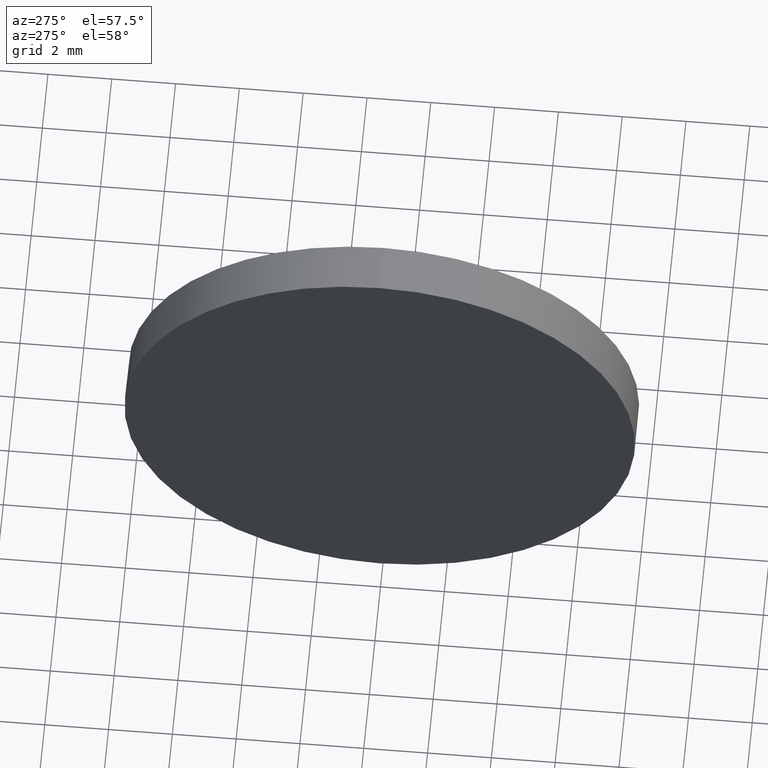
[diagram: clean part render]
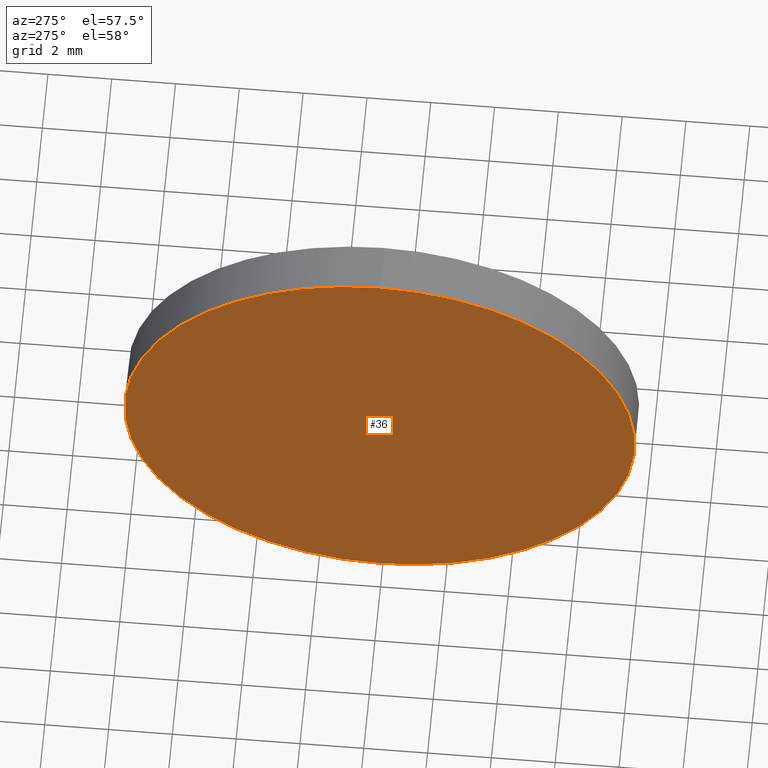
[diagram: same view with one face highlighted and labeled with its STEP entity id]
A machine part, auxiliary view. The second image highlights one B-rep face of the part: STEP entity #36.
In plain terms, the highlighted planar face has unit normal (1, 0, 0).
Its self-contained STEP definition (entity closure, byte-faithful):
#3 = AXIS2_PLACEMENT_3D ( 'NONE', #84, #75, #16 ) ;
#16 = DIRECTION ( 'NONE',  ( 0.0000000000000000000, 0.0000000000000000000, 1.000000000000000000 ) ) ;
#24 = CIRCLE ( 'NONE', #3, 7.999999999999992900 ) ;
#25 = VERTEX_POINT ( 'NONE', #153 ) ;
#28 = FACE_OUTER_BOUND ( 'NONE', #90, .T. ) ;
#32 = CARTESIAN_POINT ( 'NONE',  ( 536.6472096364605000, 122.0833661660866600, 0.0000000000000000000 ) ) ;
#36 = ADVANCED_FACE ( 'NONE', ( #28 ), #181, .F. ) ;
#55 = DIRECTION ( 'NONE',  ( 0.0000000000000000000, 0.0000000000000000000, -1.000000000000000000 ) ) ;
#61 = DIRECTION ( 'NONE',  ( 0.0000000000000000000, 0.0000000000000000000, 1.000000000000000000 ) ) ;
#70 = DIRECTION ( 'NONE',  ( 1.000000000000000000, 0.0000000000000000000, 0.0000000000000000000 ) ) ;
#71 = CARTESIAN_POINT ( 'NONE',  ( 536.6472096364605000, 122.0833661660866600, 7.999999999999992900 ) ) ;
#75 = DIRECTION ( 'NONE',  ( -1.000000000000000000, -0.0000000000000000000, -0.0000000000000000000 ) ) ;
#78 = EDGE_CURVE ( 'NONE', #133, #25, #24, .T. ) ;
#84 = CARTESIAN_POINT ( 'NONE',  ( 536.6472096364605000, 122.0833661660866600, 0.0000000000000000000 ) ) ;
#90 = EDGE_LOOP ( 'NONE', ( #93, #172 ) ) ;
#93 = ORIENTED_EDGE ( 'NONE', *, *, #78, .T. ) ;
#128 = DIRECTION ( 'NONE',  ( -1.000000000000000000, -0.0000000000000000000, -0.0000000000000000000 ) ) ;
#133 = VERTEX_POINT ( 'NONE', #71 ) ;
#139 = CARTESIAN_POINT ( 'NONE',  ( 536.6472096364605000, 122.0833661660866600, 0.0000000000000000000 ) ) ;
#141 = EDGE_CURVE ( 'NONE', #25, #133, #148, .T. ) ;
#148 = CIRCLE ( 'NONE', #150, 7.999999999999992900 ) ;
#150 = AXIS2_PLACEMENT_3D ( 'NONE', #32, #128, #61 ) ;
#152 = AXIS2_PLACEMENT_3D ( 'NONE', #139, #70, #55 ) ;
#153 = CARTESIAN_POINT ( 'NONE',  ( 536.6472096364605000, 122.0833661660866600, -7.999999999999992900 ) ) ;
#172 = ORIENTED_EDGE ( 'NONE', *, *, #141, .T. ) ;
#181 = PLANE ( 'NONE',  #152 ) ;